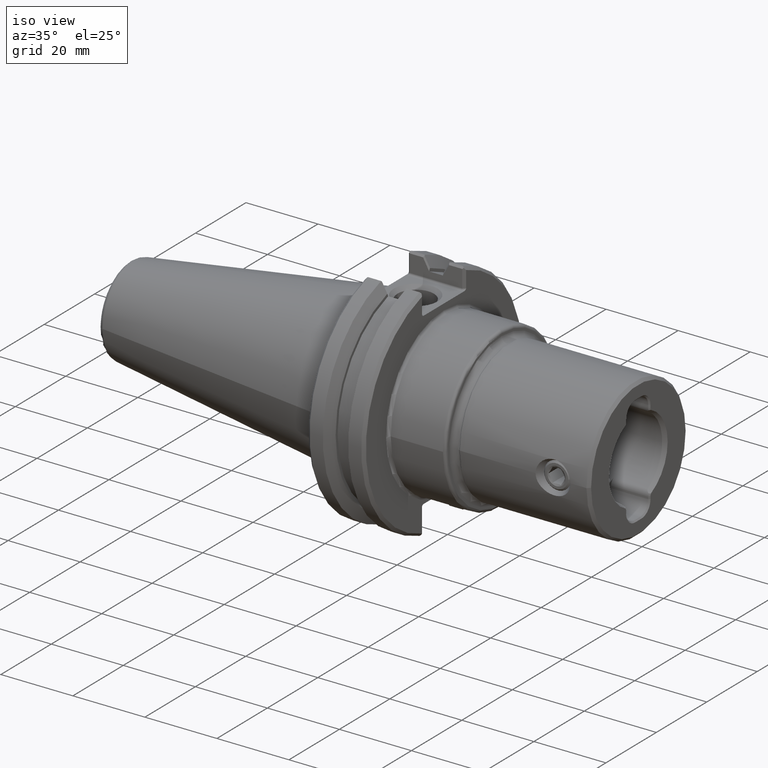
[diagram: clean part render]
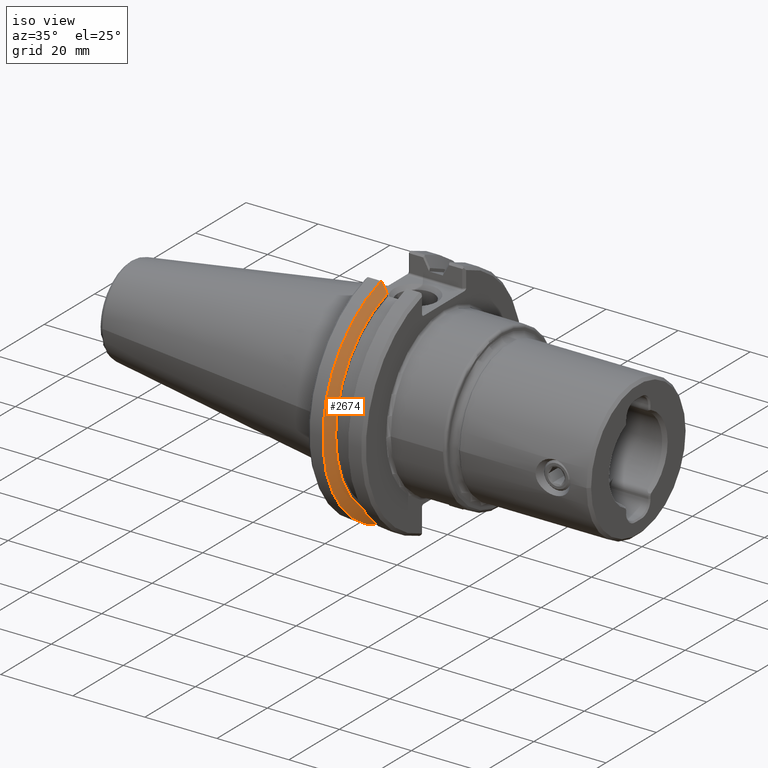
[diagram: same view with one face highlighted and labeled with its STEP entity id]
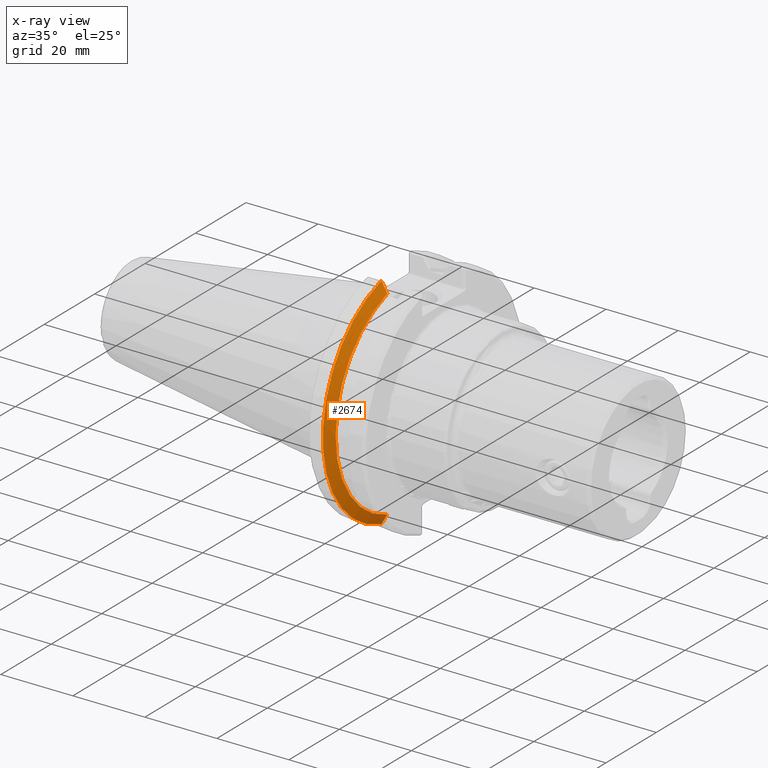
[diagram: x-ray of the same camera — body ghosted, the highlighted face saturated]
A machine part, iso view. The second image highlights one B-rep face of the part: STEP entity #2674.
The next image is the same camera in x-ray: the body ghosted, the highlighted face saturated — about 2% of this face is hidden behind the body in this view.
In plain terms, the highlighted conical surface has half-angle 60 deg.
Its self-contained STEP definition (entity closure, byte-faithful):
#46=(
BOUNDED_CURVE()
B_SPLINE_CURVE(2,(#5193,#5194,#5195),.UNSPECIFIED.,.F.,.F.)
B_SPLINE_CURVE_WITH_KNOTS((3,3),(0.,0.0246703220906679),.UNSPECIFIED.)
CURVE()
GEOMETRIC_REPRESENTATION_ITEM()
RATIONAL_B_SPLINE_CURVE((1.,1.00009739248585,1.00018150703369))
REPRESENTATION_ITEM('')
);
#62=(
BOUNDED_CURVE()
B_SPLINE_CURVE(2,(#5727,#5728,#5729),.UNSPECIFIED.,.F.,.F.)
B_SPLINE_CURVE_WITH_KNOTS((3,3),(0.337238883118682,0.361909205209384),
 .UNSPECIFIED.)
CURVE()
GEOMETRIC_REPRESENTATION_ITEM()
RATIONAL_B_SPLINE_CURVE((1.00018150703332,1.00009739248565,1.))
REPRESENTATION_ITEM('')
);
#118=CONICAL_SURFACE('',#3018,1.28590991798628,1.04719755119643);
#706=FACE_OUTER_BOUND('',#858,.T.);
#858=EDGE_LOOP('',(#2433,#2434,#2435,#2436,#2437,#2438));
#951=CIRCLE('',#2890,1.14031983597202);
#980=CIRCLE('',#2981,1.25);
#1039=B_SPLINE_CURVE_WITH_KNOTS('',3,(#4534,#4535,#4536,#4537,#4538,#4539,
#4540,#4541,#4542,#4543,#4544,#4545,#4546,#4547,#4548,#4549,#4550,#4551,
#4552,#4553,#4554),.UNSPECIFIED.,.F.,.F.,(4,1,2,2,2,2,1,2,2,2,1,4),(-0.26679066811611,
-0.258089161815722,-0.237293672557379,-0.216372800269002,-0.195325359855791,
-0.174150151867896,-0.109845707832108,-0.0663145837091143,-0.0443467487461063,
-0.0222423284602776,0.,0.0409037005549474),.UNSPECIFIED.);
#1056=B_SPLINE_CURVE_WITH_KNOTS('',3,(#5163,#5164,#5165,#5166,#5167,#5168,
#5169,#5170,#5171,#5172,#5173,#5174,#5175,#5176,#5177,#5178,#5179,#5180,
#5181,#5182,#5183),.UNSPECIFIED.,.F.,.F.,(4,1,2,2,2,1,2,2,2,2,1,4),(-0.298992862370666,
-0.258089161815683,-0.235846833356184,-0.213742413070956,-0.191774578108383,
-0.148243453985797,-0.083939009949657,-0.0627638019614301,-0.0417163615477947,
-0.0207954892589158,0.,0.00870150624889897),.UNSPECIFIED.);
#1173=VERTEX_POINT('',#4520);
#1174=VERTEX_POINT('',#4527);
#1177=VERTEX_POINT('',#4560);
#1208=VERTEX_POINT('',#5156);
#1211=VERTEX_POINT('',#5191);
#1284=VERTEX_POINT('',#5726);
#1490=EDGE_CURVE('',#1174,#1173,#1039,.T.);
#1494=EDGE_CURVE('',#1174,#1177,#951,.T.);
#1534=EDGE_CURVE('',#1208,#1177,#1056,.T.);
#1538=EDGE_CURVE('',#1211,#1208,#46,.T.);
#1656=EDGE_CURVE('',#1173,#1284,#62,.T.);
#1660=EDGE_CURVE('',#1284,#1211,#980,.T.);
#2433=ORIENTED_EDGE('',*,*,#1490,.F.);
#2434=ORIENTED_EDGE('',*,*,#1494,.T.);
#2435=ORIENTED_EDGE('',*,*,#1534,.F.);
#2436=ORIENTED_EDGE('',*,*,#1538,.F.);
#2437=ORIENTED_EDGE('',*,*,#1660,.F.);
#2438=ORIENTED_EDGE('',*,*,#1656,.F.);
#2674=ADVANCED_FACE('',(#706),#118,.T.);
#2890=AXIS2_PLACEMENT_3D('',#4567,#3374,#3375);
#2981=AXIS2_PLACEMENT_3D('',#5738,#3631,#3632);
#3018=AXIS2_PLACEMENT_3D('',#5800,#3712,#3713);
#3374=DIRECTION('center_axis',(-1.,1.62451355720802E-13,0.));
#3375=DIRECTION('ref_axis',(1.62482077846342E-13,1.,0.));
#3631=DIRECTION('center_axis',(-1.,-1.16523256636576E-36,0.));
#3632=DIRECTION('ref_axis',(1.62451355720802E-13,1.,0.));
#3712=DIRECTION('center_axis',(-1.,1.62451355720802E-13,0.));
#3713=DIRECTION('ref_axis',(-1.62420633595261E-13,-1.,-1.89882151931499E-15));
#4520=CARTESIAN_POINT('',(0.304097963663861,-0.333205733276637,-1.1965533896345));
#4527=CARTESIAN_POINT('',(0.362850000018263,-0.333149715439596,-1.09056893196945));
#4534=CARTESIAN_POINT('Ctrl Pts',(0.362850000074912,-0.333149715431673,
-1.09056893200217));
#4535=CARTESIAN_POINT('Ctrl Pts',(0.36229776315521,-0.333150136745706,-1.09156894051598));
#4536=CARTESIAN_POINT('Ctrl Pts',(0.360425583735129,-0.333151576021461,
-1.09495874351327));
#4537=CARTESIAN_POINT('Ctrl Pts',(0.358552843536145,-0.33315305257184,-1.09834821630023));
#4538=CARTESIAN_POINT('Ctrl Pts',(0.355903756464087,-0.333155177367194,
-1.10314148193));
#4539=CARTESIAN_POINT('Ctrl Pts',(0.354574954851492,-0.333156261404296,
-1.10554515500555));
#4540=CARTESIAN_POINT('Ctrl Pts',(0.351908767053504,-0.333158472434805,
-1.1103667217287));
#4541=CARTESIAN_POINT('Ctrl Pts',(0.350571377575347,-0.333159599647954,
-1.11278461344026));
#4542=CARTESIAN_POINT('Ctrl Pts',(0.347887938055783,-0.33316189714907,-1.11763475531964));
#4543=CARTESIAN_POINT('Ctrl Pts',(0.34654188473831,-0.333163067656323,-1.12006700355403));
#4544=CARTESIAN_POINT('Ctrl Pts',(0.341107080158826,-0.333167865320911,
-1.12988481558127));
#4545=CARTESIAN_POINT('Ctrl Pts',(0.334246734441454,-0.33317419571174,-1.14226788346333));
#4546=CARTESIAN_POINT('Ctrl Pts',(0.327379805823841,-0.333180969510772,
-1.15464707005148));
#4547=CARTESIAN_POINT('Ctrl Pts',(0.323207301074987,-0.333185189046114,
-1.16216522853373));
#4548=CARTESIAN_POINT('Ctrl Pts',(0.321807612567309,-0.333186622042596,
-1.16468660436735));
#4549=CARTESIAN_POINT('Ctrl Pts',(0.318999014463773,-0.333189532056907,
-1.16974472683489));
#4550=CARTESIAN_POINT('Ctrl Pts',(0.31759010164354,-0.333191009292996,-1.17228147157004));
#4551=CARTESIAN_POINT('Ctrl Pts',(0.314762970597268,-0.33319400793761,-1.17737048354769));
#4552=CARTESIAN_POINT('Ctrl Pts',(0.310736636168226,-0.333198327842171,
-1.18461637151514));
#4553=CARTESIAN_POINT('Ctrl Pts',(0.306708244172714,-0.333202787555305,
-1.19186104554502));
#4554=CARTESIAN_POINT('Ctrl Pts',(0.304097963663861,-0.333205733276637,
-1.1965533896345));
#4560=CARTESIAN_POINT('',(0.362850000003168,-0.333149715435783,1.09056893198429));
#4567=CARTESIAN_POINT('Origin',(0.362849999999605,-2.77198870834126E-13,
0.));
#5156=CARTESIAN_POINT('',(0.304097963663861,-0.333205733276636,1.1965533896345));
#5163=CARTESIAN_POINT('Ctrl Pts',(0.304097963663861,-0.333205733276635,
1.1965533896345));
#5164=CARTESIAN_POINT('Ctrl Pts',(0.306708244172717,-0.333202787555303,
1.19186104554502));
#5165=CARTESIAN_POINT('Ctrl Pts',(0.310736636168182,-0.333198327842172,
1.18461637151522));
#5166=CARTESIAN_POINT('Ctrl Pts',(0.314762970597177,-0.333194007937611,
1.17737048354786));
#5167=CARTESIAN_POINT('Ctrl Pts',(0.317590101643361,-0.333191009292997,
1.17228147157037));
#5168=CARTESIAN_POINT('Ctrl Pts',(0.318999014463555,-0.333189532056908,
1.16974472683528));
#5169=CARTESIAN_POINT('Ctrl Pts',(0.321807612567026,-0.333186622042597,
1.16468660436786));
#5170=CARTESIAN_POINT('Ctrl Pts',(0.323207301074676,-0.333185189046115,
1.16216522853429));
#5171=CARTESIAN_POINT('Ctrl Pts',(0.327379805823476,-0.333180969510772,
1.15464707005214));
#5172=CARTESIAN_POINT('Ctrl Pts',(0.334246734441086,-0.33317419571174,1.14226788346399));
#5173=CARTESIAN_POINT('Ctrl Pts',(0.341107080158454,-0.333167865320907,
1.12988481558195));
#5174=CARTESIAN_POINT('Ctrl Pts',(0.346541884737982,-0.333163067656319,
1.12006700355462));
#5175=CARTESIAN_POINT('Ctrl Pts',(0.347887938055476,-0.333161897149066,
1.1176347553202));
#5176=CARTESIAN_POINT('Ctrl Pts',(0.350571377575088,-0.33315959964795,1.11278461344073));
#5177=CARTESIAN_POINT('Ctrl Pts',(0.351908767053272,-0.333158472434802,
1.11036672172912));
#5178=CARTESIAN_POINT('Ctrl Pts',(0.354574954851319,-0.333156261404293,
1.10554515500587));
#5179=CARTESIAN_POINT('Ctrl Pts',(0.355903756463946,-0.333155177367191,
1.10314148193026));
#5180=CARTESIAN_POINT('Ctrl Pts',(0.358552843536072,-0.333153052571837,
1.09834821630037));
#5181=CARTESIAN_POINT('Ctrl Pts',(0.360425583731823,-0.333151576021461,
1.09495874351926));
#5182=CARTESIAN_POINT('Ctrl Pts',(0.362297763148674,-0.333150136745708,
1.09156894052782));
#5183=CARTESIAN_POINT('Ctrl Pts',(0.362850000065109,-0.333149715431676,
1.09056893201993));
#5191=CARTESIAN_POINT('',(0.299526127773263,-0.339628138321233,1.20297661143534));
#5193=CARTESIAN_POINT('Ctrl Pts',(0.299526127773057,-0.339628138321503,
1.20297661143561));
#5194=CARTESIAN_POINT('Ctrl Pts',(0.301821602854596,-0.336406732121148,
1.1997547955595));
#5195=CARTESIAN_POINT('Ctrl Pts',(0.304097963663861,-0.333205733276636,
1.1965533896345));
#5726=CARTESIAN_POINT('',(0.299526127773263,-0.339628138321216,-1.20297661143534));
#5727=CARTESIAN_POINT('Ctrl Pts',(0.304097963663861,-0.333205733276637,
-1.1965533896345));
#5728=CARTESIAN_POINT('Ctrl Pts',(0.301821602854592,-0.336406732121154,
-1.19975479555951));
#5729=CARTESIAN_POINT('Ctrl Pts',(0.299526127773054,-0.339628138321509,
-1.20297661143562));
#5738=CARTESIAN_POINT('Origin',(0.299526127773263,-1.25900334302591E-36,
0.));
#5800=CARTESIAN_POINT('Origin',(0.2787935269573,-2.63543782831294E-13,0.));